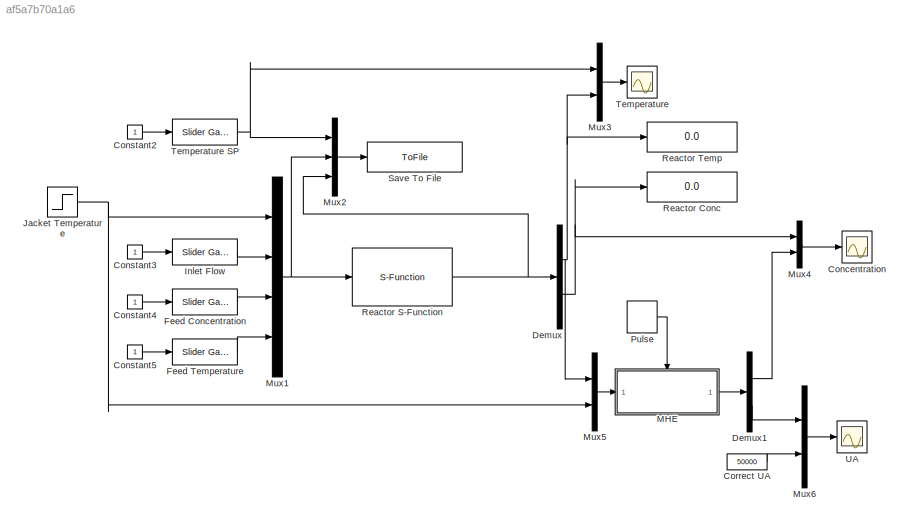
MODEL slx_af5a7b70a1a6
KIND model
CONFIG StartFcn = clear all\nclose all\nclc
CONFIG StopFcn = plot_reactor\nclear all
BLOCK [Scope] Concentration
  DataFormat = StructureWithTime
  Floating = off
  LegendLocations = 0.77461     0.79035     0.17618     0.10315
  NumInputPorts = 1
  Ports = [1]
  SampleTime = 0
  ShowLegends = on
  YMax = 1
  YMin = 0
BLOCK [Constant] Constant2
BLOCK [Constant] Constant3
BLOCK [Constant] Constant4
BLOCK [Constant] Constant5
BLOCK [Constant] Correct UA
  Value = 50000
BLOCK [Demux] Demux
  DisplayOption = bar
  Outputs = 2
  Ports = [1, 2]
BLOCK [Demux] Demux1
  DisplayOption = bar
  Outputs = 2
  Ports = [1, 2]
BLOCK [Reference] Feed Concentration  REF=simulink/Math
Operations/Slider
Gain
  Ports = [1, 1]
  SourceBlock = simulink/Math\nOperations/Slider\nGain
  SourceType = Slider Gain
  gain = 1
  high = 1
  low = 0
BLOCK [Reference] Feed Temperature  REF=simulink/Math
Operations/Slider
Gain
  Ports = [1, 1]
  SourceBlock = simulink/Math\nOperations/Slider\nGain
  SourceType = Slider Gain
  gain = 350
  high = 400
  low = 300
BLOCK [Reference] Inlet Flow  REF=simulink/Math
Operations/Slider
Gain
  Ports = [1, 1]
  SourceBlock = simulink/Math\nOperations/Slider\nGain
  SourceType = Slider Gain
  gain = 100
  high = 200
  low = 0
BLOCK [Step] Jacket Temperature
  After = 300
  Before = 280
  SampleTime = 0
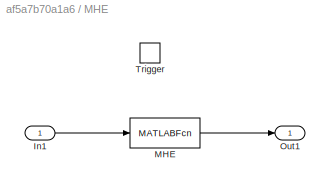
BLOCK [SubSystem] MHE
  Ports = [1, 1, 0, 1]
  RequestExecContextInheritance = off
  TreatAsAtomicUnit = on
BLOCK [Inport] MHE/In1
  IconDisplay = Port number
BLOCK [MATLABFcn] MHE/MHE
  MATLABFcn = mhe
  OutputDimensions = 2
  Ports = [1, 1]
BLOCK [Outport] MHE/Out1
  IconDisplay = Port number
BLOCK [TriggerPort] MHE/Trigger
  Ports = []
  StatesWhenEnabling = held
BLOCK [Mux] Mux1
  DisplayOption = bar
  Ports = [4, 1]
BLOCK [Mux] Mux2
  DisplayOption = bar
  Inputs = 3
  Ports = [3, 1]
BLOCK [Mux] Mux3
  DisplayOption = bar
  Inputs = 2
  Ports = [2, 1]
BLOCK [Mux] Mux4
  DisplayOption = bar
  Inputs = 2
  Ports = [2, 1]
BLOCK [Mux] Mux5
  DisplayOption = bar
  Inputs = 2
  Ports = [2, 1]
BLOCK [Mux] Mux6
  DisplayOption = bar
  Inputs = 2
  Ports = [2, 1]
BLOCK [DiscretePulseGenerator] Pulse
  Period = 0.1
  Ports = [0, 1]
  PulseType = Time based
  PulseWidth = 5
BLOCK [Display] Reactor Conc
  Decimation = 1
  Ports = [1]
BLOCK [S-Function] Reactor S-Function
  EnableBusSupport = off
  FunctionName = reactor
  Ports = [1, 1]
BLOCK [Display] Reactor Temp
  Decimation = 1
  Ports = [1]
BLOCK [ToFile] Save To File
  Filename = data.mat
  MatrixName = cstr
  Ports = [1]
  SampleTime = 0.05
BLOCK [Scope] Temperature
  DataFormat = StructureWithTime
  Floating = off
  LegendLocations = 0.72879     0.67445     0.22167     0.20976
  MaxDataPoints = 30000
  NumInputPorts = 1
  Ports = [1]
  SampleTime = 0
  SaveName = ScopeData1
  ShowLegends = on
  TimeRange = 10
  YMax = 400
  YMin = 285
  ZoomMode = yonly
BLOCK [Reference] Temperature SP  REF=simulink/Math
Operations/Slider
Gain
  Ports = [1, 1]
  SourceBlock = simulink/Math\nOperations/Slider\nGain
  SourceType = Slider Gain
  gain = 310
  high = 400
  low = 300
BLOCK [Scope] UA
  DataFormat = StructureWithTime
  Floating = off
  LegendLocations = 0.77134     0.79035     0.17945     0.10315
  NumInputPorts = 1
  Ports = [1]
  SampleTime = 0
  SaveName = ScopeData2
  ShowLegends = on
  YMax = 1
  YMin = 0
LINE Constant2:1 -> Temperature SP:1
LINE Constant3:1 -> Inlet Flow:1
LINE Constant4:1 -> Feed Concentration:1
LINE Constant5:1 -> Feed Temperature:1
LINE Correct UA:1 -> Mux6:2
LINE Demux1:1 -> Mux4:2
LINE Demux1:2 -> Mux6:1
NET Demux:1 -> Mux3:2, Mux5:1, Reactor Temp:1
NET Demux:2 -> Mux4:1, Reactor Conc:1
LINE Feed Concentration:1 -> Mux1:3
LINE Feed Temperature:1 -> Mux1:4
LINE Inlet Flow:1 -> Mux1:2
NET Jacket Temperature:1 -> Mux1:1, Mux5:2
LINE MHE/In1:1 -> MHE/MHE:1
LINE MHE/MHE:1 -> MHE/Out1:1
LINE MHE:1 -> Demux1:1
NET Mux1:1 -> Mux2:2, Reactor S-Function:1
LINE Mux2:1 -> Save To File:1
LINE Mux3:1 -> Temperature:1
LINE Mux4:1 -> Concentration:1
LINE Mux5:1 -> MHE:1
LINE Mux6:1 -> UA:1
LINE Pulse:1 -> MHE:trigger
NET Reactor S-Function:1 -> Demux:1, Mux2:3
NET Temperature SP:1 -> Mux2:1, Mux3:1
note: NET lines group one-source signal fan-out (src -> all destinations, sorted); 1:1 wires keep LINE
